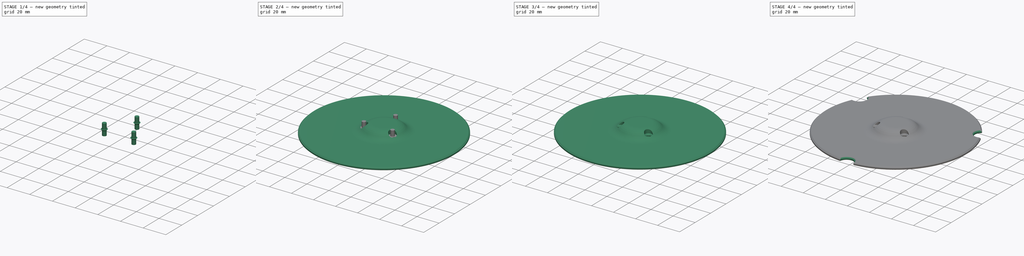
[diagram: build sequence overview — one tinted view per stage of 4, left to right]
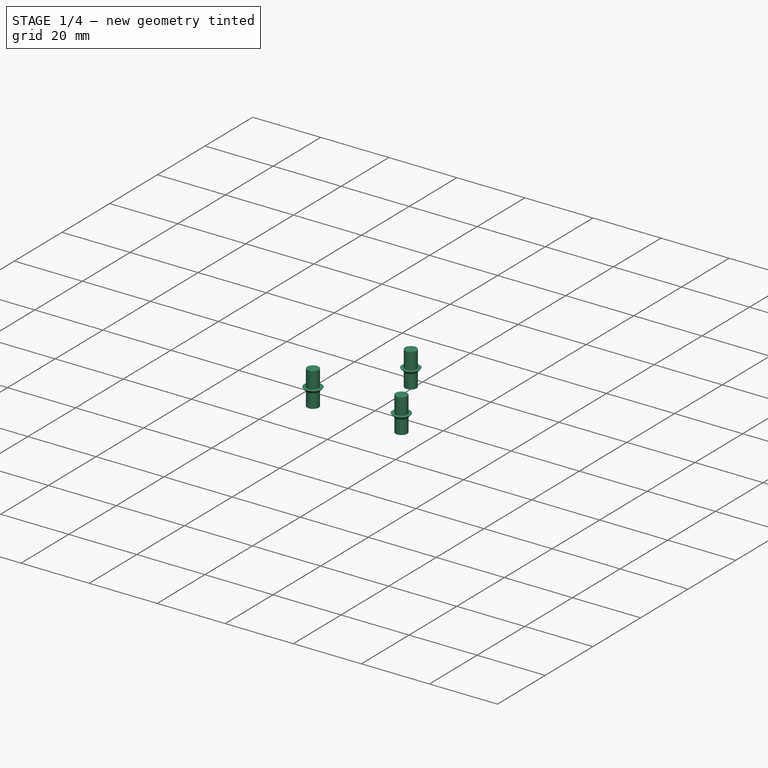
[diagram: stage 1 of 4 — iso view after this stage's code; geometry added in this stage tinted green]
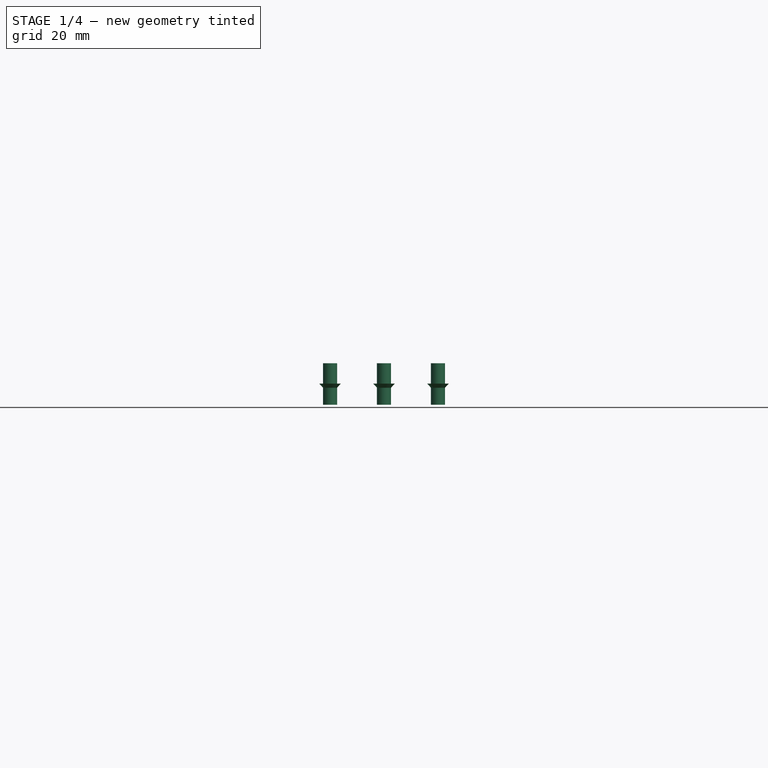
[diagram: stage 1 of 4 — front view after this stage's code; geometry added in this stage tinted green]
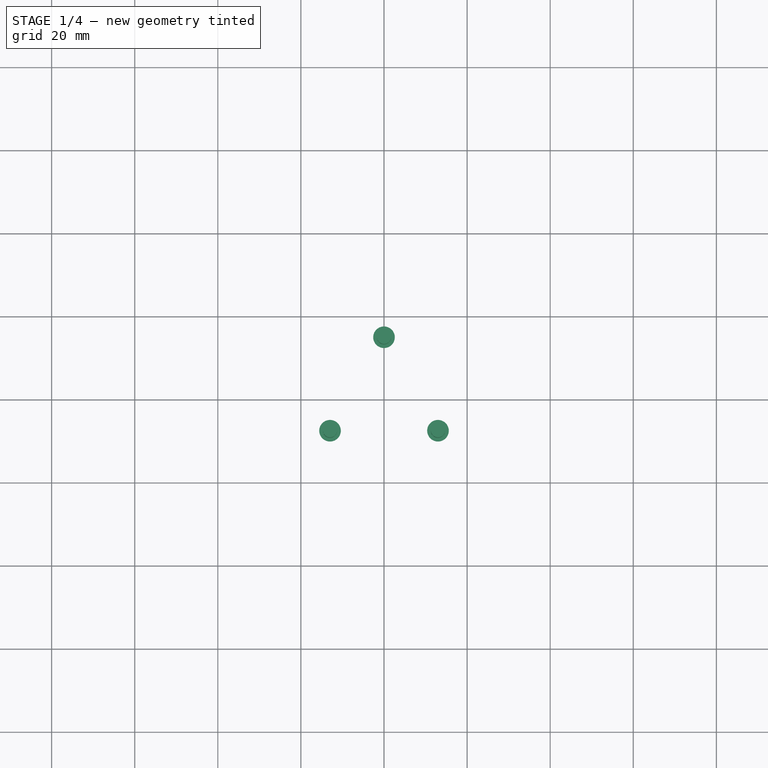
[diagram: stage 1 of 4 — top view after this stage's code; geometry added in this stage tinted green]
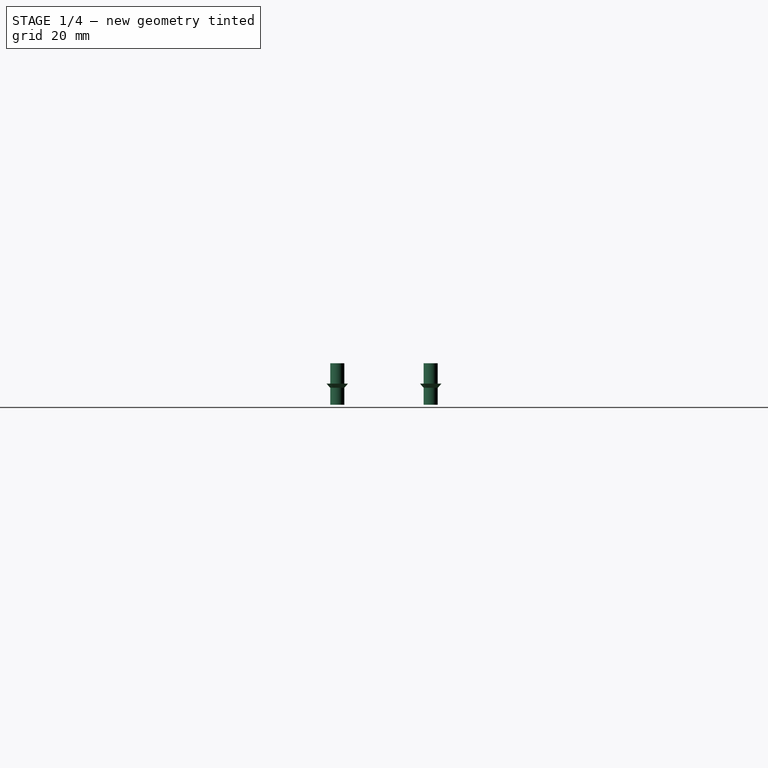
[diagram: stage 1 of 4 — right view after this stage's code; geometry added in this stage tinted green]
FCSTD DOCUMENT  (FreeCAD 0.17R13522 (Git))
Label: plato_loco_b
License: All rights reserved
LicenseURL: http://en.wikipedia.org/wiki/All_rights_reserved
objects: Part::FeaturePython×3, Part::Cut×3, Sketcher::SketchObject×2, Part::Cylinder×2, PartDesign::Revolution×1, PartDesign::Chamfer×1, PartDesign::Pocket×1, PartDesign::Body×1, Part::Cone×1, Part::Fillet×1, Part::Chamfer×1
note: 19 computed .brp shape members not serialized (recipe doc carries the construction recipe); baked Part::Feature solids carry a one-line shape summary decoded from their .brp

FEATURE [Part::Cylinder] Cylinder001  label="Cilindro001"
  Angle = 360
  AttacherType = Attacher::AttachEngine3D
  Height = 10
  Placement = pos=(0,15,0) rot=(0,0,1;0rad)
  Radius = 1.7
FEATURE [Part::FeaturePython] Array001  # Draft array (typed FeaturePython)
  Angle = 360
  ArrayType = 1
  Axis = (0,0,1)
  Base = -> Cylinder001
  Center = (0,0,0)
  Fuse = false
  IntervalAxis = (0,0,0)
  IntervalX = (1,0,0)
  IntervalY = (0,1,0)
  IntervalZ = (0,0,0)
  NumberPolar = 3
  NumberX = 2
  NumberY = 2
  NumberZ = 1
FEATURE [Part::Cone] Cone  label="Cono"
  Angle = 360
  AttacherType = Attacher::AttachEngine3D
  Height = 1.1
  Placement = pos=(0,15,4) rot=(0,0,1;0rad)
  Radius1 = 1.6
  Radius2 = 2.6
FEATURE [Part::FeaturePython] Array002  # Draft array (typed FeaturePython)
  Angle = 360
  ArrayType = 1
  Axis = (0,0,1)
  Base = -> Cone
  Center = (0,0,0)
  Fuse = false
  IntervalAxis = (0,0,0)
  IntervalX = (1,0,0)
  IntervalY = (0,1,0)
  IntervalZ = (0,0,0)
  NumberPolar = 3
  NumberX = 2
  NumberY = 2
  NumberZ = 1
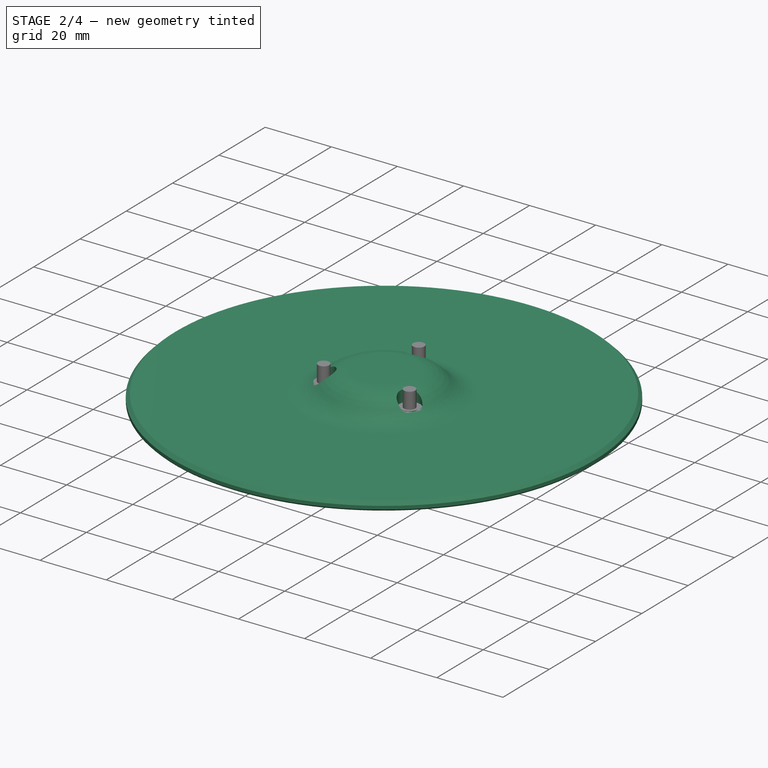
[diagram: stage 2 of 4 — iso view after this stage's code; geometry added in this stage tinted green]
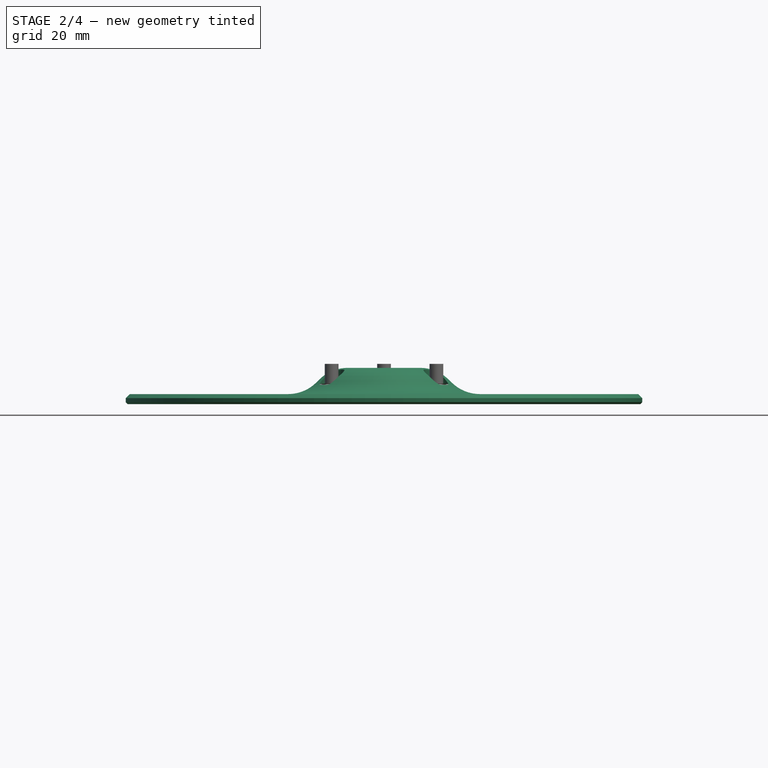
[diagram: stage 2 of 4 — front view after this stage's code; geometry added in this stage tinted green]
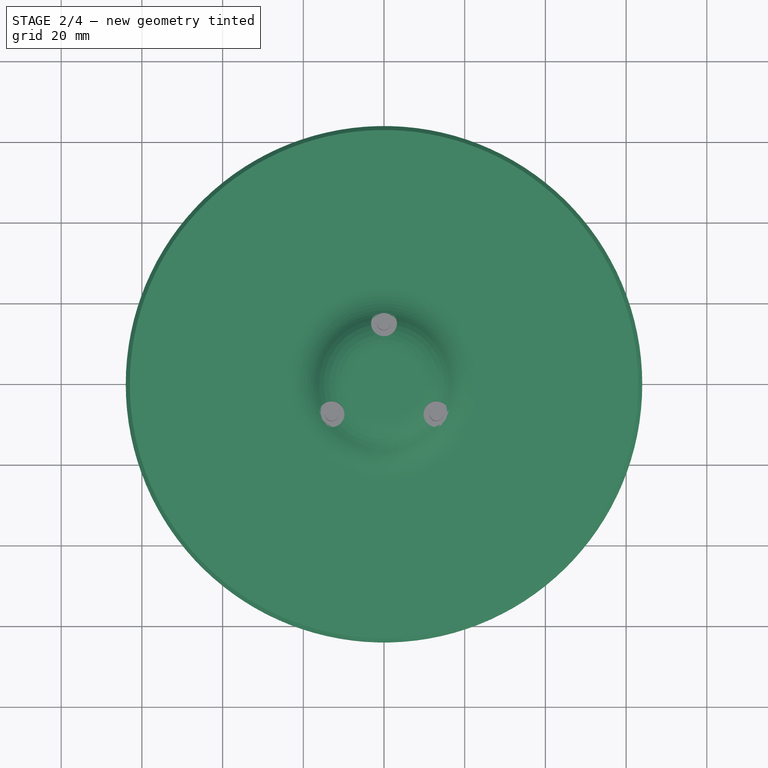
[diagram: stage 2 of 4 — top view after this stage's code; geometry added in this stage tinted green]
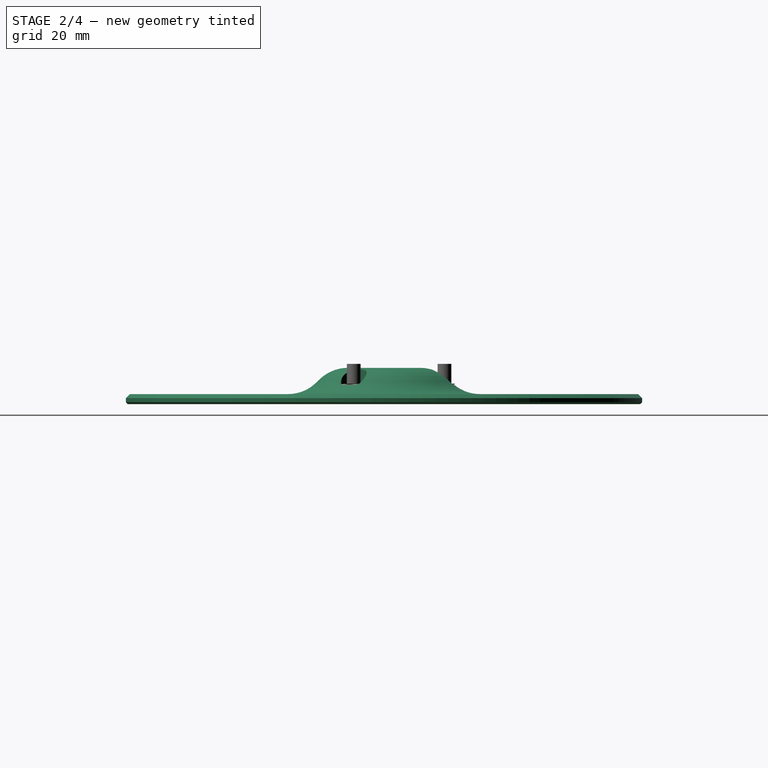
[diagram: stage 2 of 4 — right view after this stage's code; geometry added in this stage tinted green]
FEATURE [Sketcher::SketchObject] Sketch
  MapMode = 5
  Placement = pos=(0,0,0) rot=(1,0,0;1.5708rad)
  Support = -> [XZ_Plane]
  sketch-geometry (13):
    g0: LineSegment StartX=-63.5 StartY=0 StartZ=0 EndX=-9 EndY=0 EndZ=0
    g1: LineSegment StartX=-9 StartY=0 StartZ=0 EndX=-9 EndY=6.5 EndZ=0
    g2: LineSegment StartX=-9 StartY=6.5 StartZ=0 EndX=-8 EndY=7.5 EndZ=0
    g3: LineSegment StartX=-8 StartY=7.5 StartZ=0 EndX=0 EndY=7.5 EndZ=0
    g4: LineSegment StartX=0 StartY=7.5 StartZ=0 EndX=0 EndY=9 EndZ=0
    g5: LineSegment StartX=0 StartY=9 StartZ=0 EndX=-9 EndY=9 EndZ=0
    g6: LineSegment StartX=-16.0711 StartY=6.07107 StartZ=0 EndX=-16.7132 EndY=5.42893 EndZ=0
    g7: LineSegment StartX=-23.7843 StartY=2.5 StartZ=0 EndX=-63 EndY=2.5 EndZ=0
    g8: LineSegment StartX=-63 StartY=2.5 StartZ=0 EndX=-64 EndY=1.5 EndZ=0
    g9: LineSegment StartX=-64 StartY=1.5 StartZ=0 EndX=-64 EndY=0.5 EndZ=0
    g10: LineSegment StartX=-64 StartY=0.5 StartZ=0 EndX=-63.5 EndY=0 EndZ=0
    g11: ArcOfCircle CenterX=-9 CenterY=-1 CenterZ=0 NormalX=0 NormalY=0 NormalZ=1 AngleXU=0 Radius=10 StartAngle=1.5708 EndAngle=2.35619
    g12: ArcOfCircle CenterX=-23.7843 CenterY=12.5 CenterZ=0 NormalX=0 NormalY=0 NormalZ=1 AngleXU=0 Radius=10 StartAngle=4.71239 EndAngle=5.49779
  constraints (37):
    c: PointOnObject(g0,g-1)
    c: Horizontal(g0)
    c: Coincident(g0,g1)
    c: Vertical(g1)
    c: Coincident(g1,g2)
    c: Coincident(g2,g3)
    c: Horizontal(g3)
    c: Coincident(g3,g4)
    c: PointOnObject(g4,g-2)
    c: Coincident(g4,g5)
    c: Horizontal(g5)
    c: Horizontal(g7)
    c: Coincident(g7,g8)
    c: Coincident(g8,g9)
    c: Vertical(g9)
    c: Coincident(g9,g10)
    c: Coincident(g10,g0)
    c: Angle(g0,g10) = 2.35619
    c: DistanceY(g0,g9) = 0.5
    c: DistanceY(g9,g9) = 1
    c: DistanceY(g8,g7) = 1
    c: Angle(g10,g8) = 1.5708
    c: DistanceX(g0,g-1) = 9
    c: DistanceY(g1,g1) = 6.5
    c: Vertical(g4)
    c: Angle(g1,g2) = 2.35619
    c: DistanceY(g1,g2) = 1
    c: DistanceY(g4,g4) = 1.5
    c: DistanceX(g9,g-1) = 64
    c: Tangent(g6,g11) = -1.5708
    c: Tangent(g5,g11) = -1.5708
    c: Tangent(g6,g12) = 1.5708
    c: Tangent(g7,g12) = 1.5708
    c: Radius(g12) = 10
    c: Equal(g12,g11)
    c: Angle(g6,g7) = 2.35619
    c: DistanceX(g5,g5) = 9
FEATURE [PartDesign::Revolution] Revolution
  Angle = 360
  Axis = (0,0,1)
  Base = (0,0,0)
  Placement = pos=(0,0,0) rot=(1,0,0;1.5708rad)
  Profile = -> Sketch
  ReferenceAxis = -> Sketch [V_Axis]
  Refine = true
FEATURE [PartDesign::Chamfer] Chamfer
  Base = -> Revolution [Edge9]
  BaseFeature = -> Revolution
  Placement = pos=(0,0,0) rot=(1,0,0;1.5708rad)
  Size = 0.5
FEATURE [Sketcher::SketchObject] Sketch001
  MapMode = 5
  Placement = pos=(0,-1e-12,9) rot=(0,0,1;3.14159rad)
  Support = -> [Chamfer]
  sketch-geometry (6):
    g0: LineSegment [constr] StartX=0 StartY=-15 StartZ=0 EndX=-12.9904 EndY=7.5 EndZ=0
    g1: LineSegment [constr] StartX=-12.9904 StartY=7.5 StartZ=0 EndX=12.9904 EndY=7.5 EndZ=0
    g2: LineSegment [constr] StartX=12.9904 StartY=7.5 StartZ=0 EndX=0 EndY=-15 EndZ=0
    g3: Circle CenterX=-12.9904 CenterY=7.5 CenterZ=0 NormalX=0 NormalY=0 NormalZ=1 AngleXU=0 Radius=3.2
    g4: Circle CenterX=12.9904 CenterY=7.5 CenterZ=0 NormalX=0 NormalY=0 NormalZ=1 AngleXU=0 Radius=3.2
    g5: Circle CenterX=0 CenterY=-15 CenterZ=0 NormalX=0 NormalY=0 NormalZ=1 AngleXU=0 Radius=3.2
  constraints (15):
    c: PointOnObject(g0,g-2)
    c: Coincident(g0,g1)
    c: Horizontal(g1)
    c: Coincident(g1,g2)
    c: Coincident(g2,g0)
    c: Equal(g2,g0)
    c: Equal(g0,g1)
    c: DistanceY(g0,g-1) = 15
    c: Distance(g-1,g0) = 15
    c: Coincident(g3,g0)
    c: Coincident(g4,g1)
    c: Coincident(g5,g0)
    c: Radius(g5) = 3.2
    c: Equal(g5,g4)
    c: Equal(g5,g3)
FEATURE [PartDesign::Pocket] Pocket
  BaseFeature = -> Chamfer
  Length = 4
  Length2 = 100
  Placement = pos=(0,0,0) rot=(1,0,0;1.5708rad)
  Profile = -> Sketch001
  Refine = true
  Type = 0
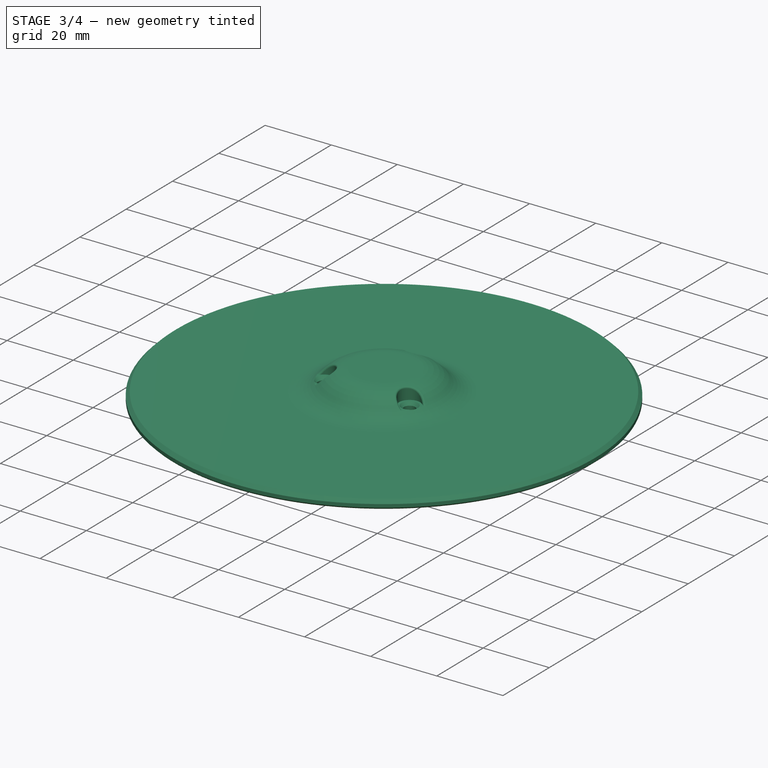
[diagram: stage 3 of 4 — iso view after this stage's code; geometry added in this stage tinted green]
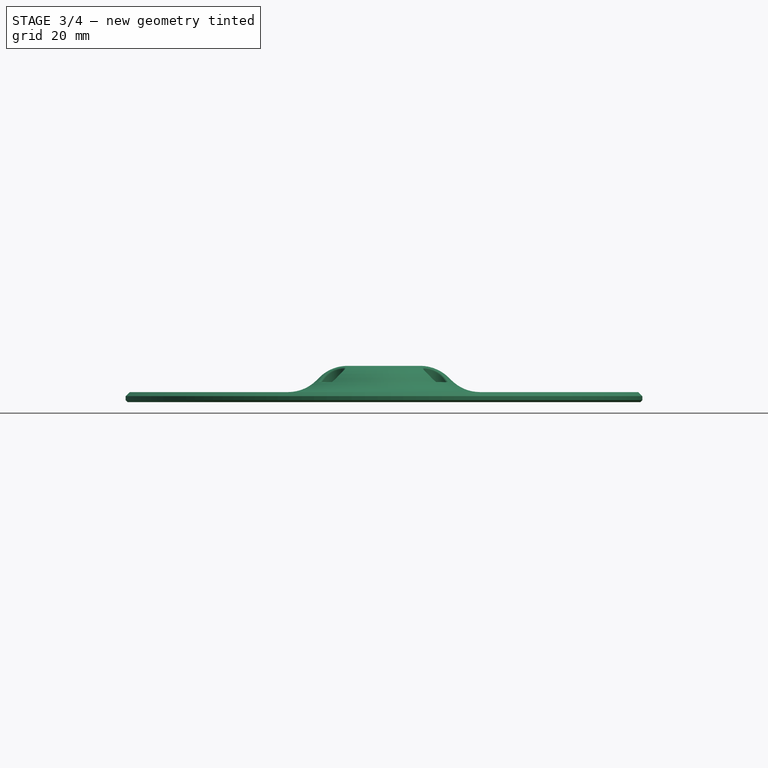
[diagram: stage 3 of 4 — front view after this stage's code; geometry added in this stage tinted green]
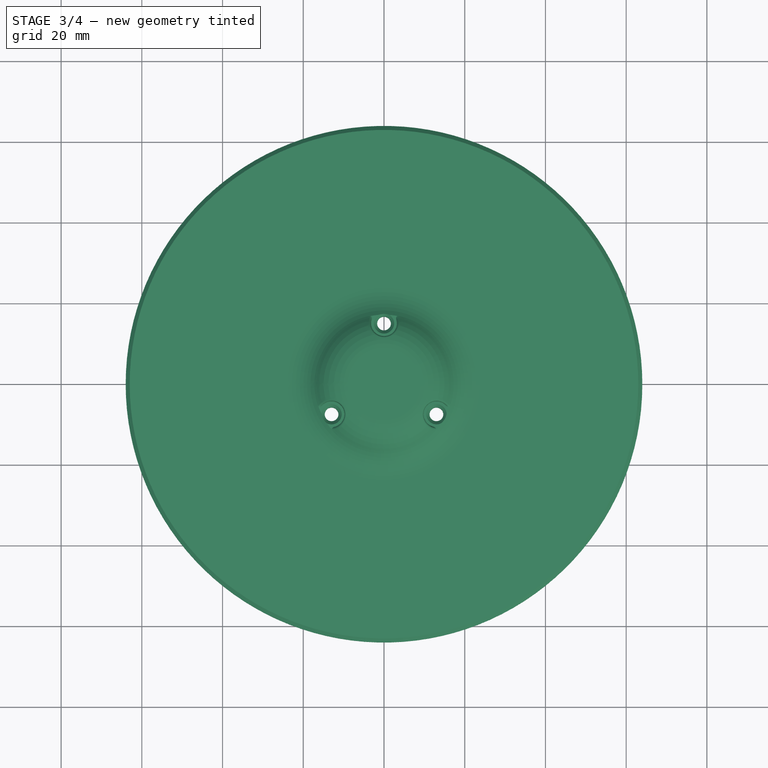
[diagram: stage 3 of 4 — top view after this stage's code; geometry added in this stage tinted green]
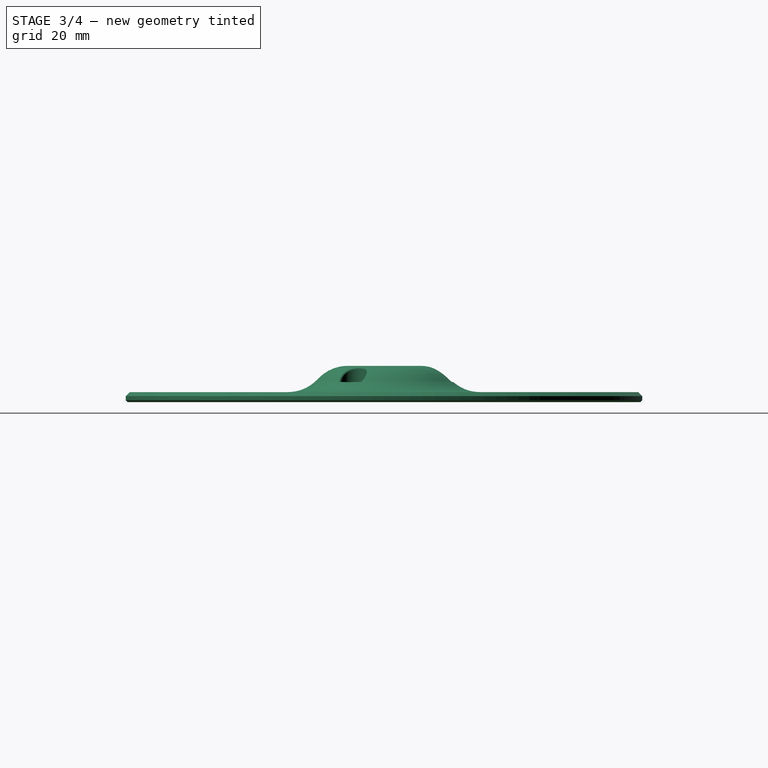
[diagram: stage 3 of 4 — right view after this stage's code; geometry added in this stage tinted green]
FEATURE [Part::Cut] Cut
  Base = -> Pocket
  Refine = true
  Tool = -> Array001
FEATURE [Part::Cut] Cut001
  Base = -> Cut
  Refine = true
  Tool = -> Array002
FEATURE [Part::Fillet] Fillet
  Base = -> Cut001
  Edges = 4 edges r=0.5: [Edge61,Edge62,Edge67,Edge72]
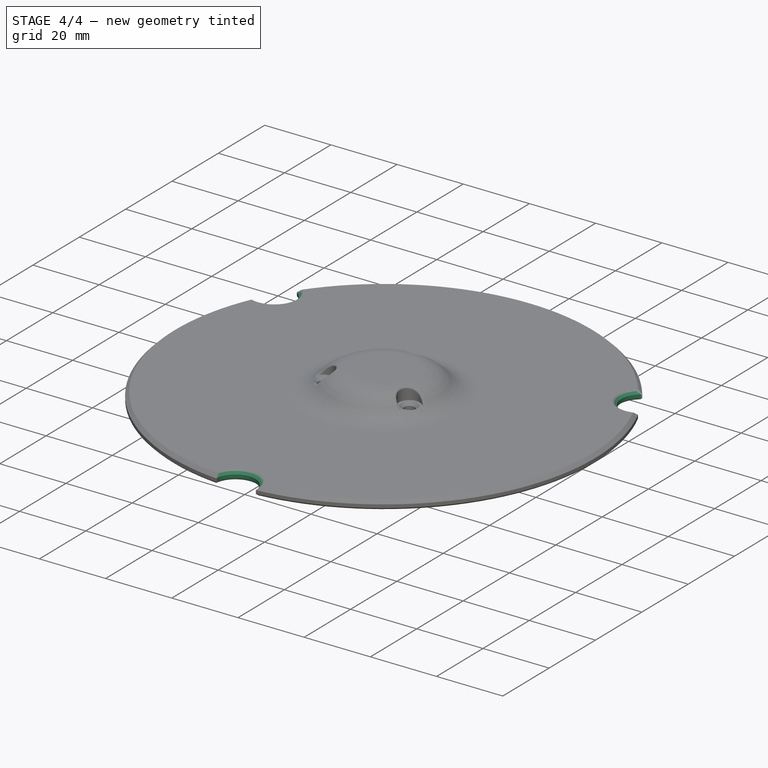
[diagram: stage 4 of 4 — iso view after this stage's code; geometry added in this stage tinted green]
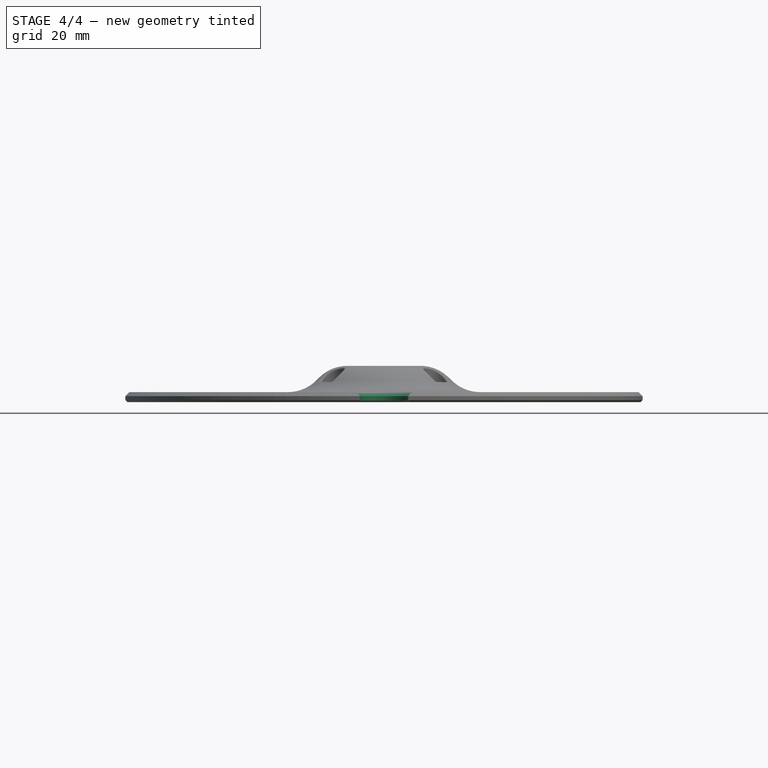
[diagram: stage 4 of 4 — front view after this stage's code; geometry added in this stage tinted green]
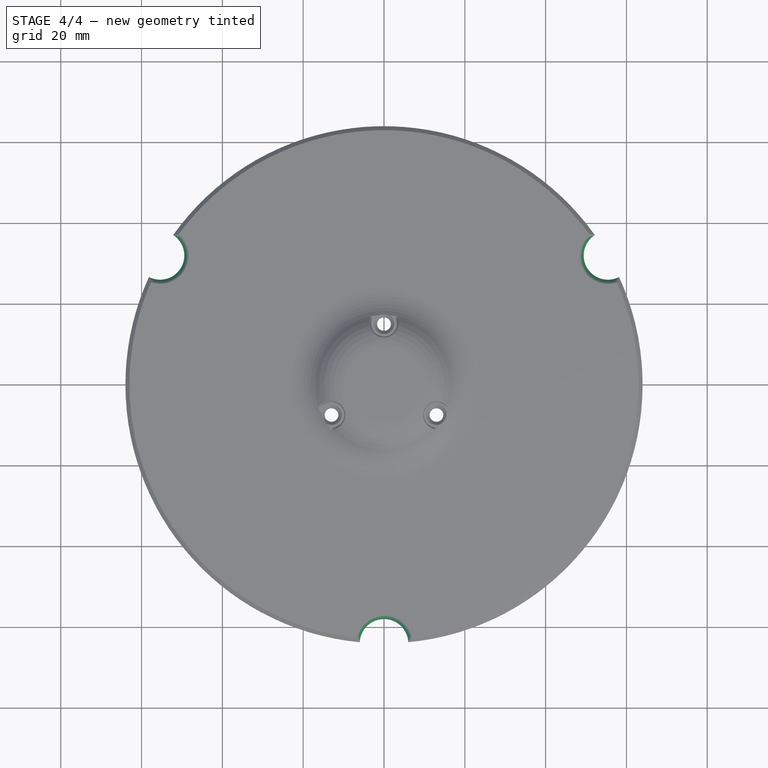
[diagram: stage 4 of 4 — top view after this stage's code; geometry added in this stage tinted green]
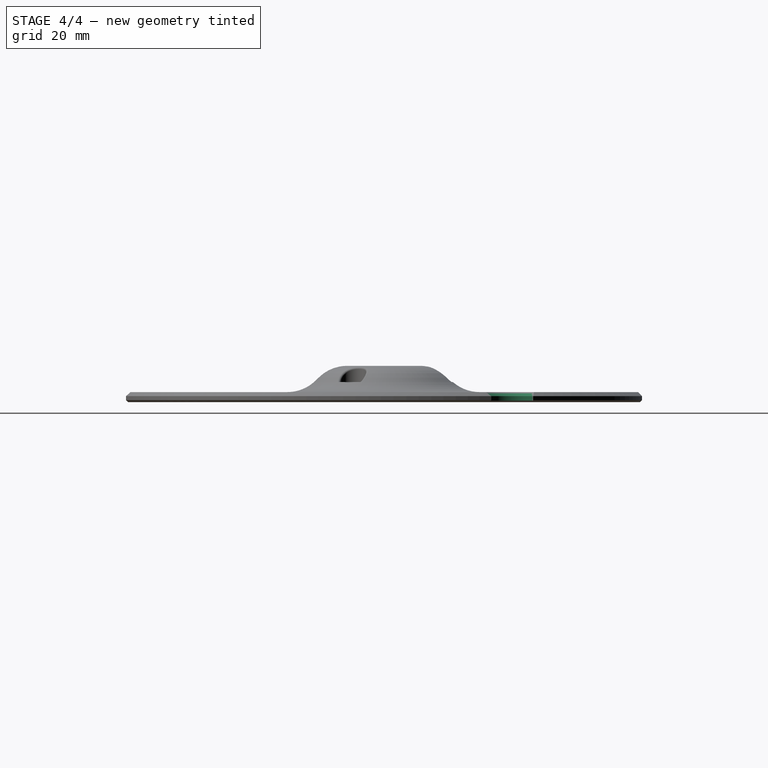
[diagram: stage 4 of 4 — right view after this stage's code; geometry added in this stage tinted green]
FEATURE [PartDesign::Body] Body
  Group = -> [Sketch,Revolution,Chamfer,Sketch001,Pocket]
  Origin = -> Origin
  Tip = -> Pocket
FEATURE [Part::Cylinder] Cylinder  label="Cilindro"
  Angle = 360
  AttacherType = Attacher::AttachEngine3D
  Height = 10
  Placement = pos=(0,-64,0) rot=(0,0,1;0rad)
  Radius = 6
FEATURE [Part::FeaturePython] Array  # Draft array (typed FeaturePython)
  Angle = 360
  ArrayType = 1
  Axis = (0,0,1)
  Base = -> Cylinder
  Center = (0,0,0)
  Fuse = false
  IntervalAxis = (0,0,0)
  IntervalX = (1,0,0)
  IntervalY = (0,1,0)
  IntervalZ = (0,0,0)
  NumberPolar = 3
  NumberX = 2
  NumberY = 2
  NumberZ = 1
FEATURE [Part::Cut] Cut002
  Base = -> Fillet
  Refine = true
  Tool = -> Array
FEATURE [Part::Chamfer] Chamfer001
  Base = -> Cut002
  Edges = 6 edges: [Edge59 r=1,Edge61 r=1,Edge63 r=1,Edge105 r=0.4,Edge113 r=0.4,Edge121 r=0.4]
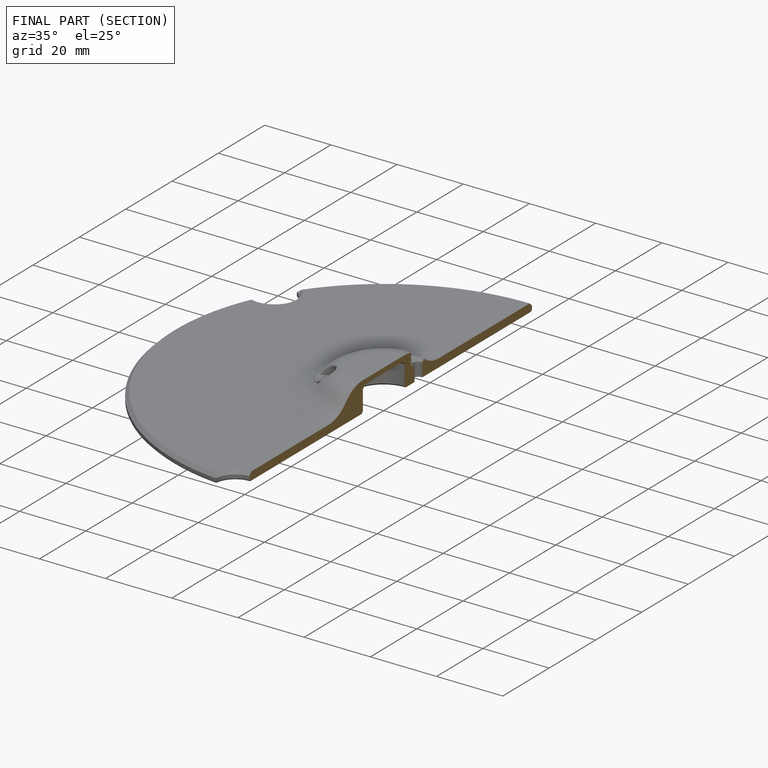
[diagram: finished part — half-section view (interior)]
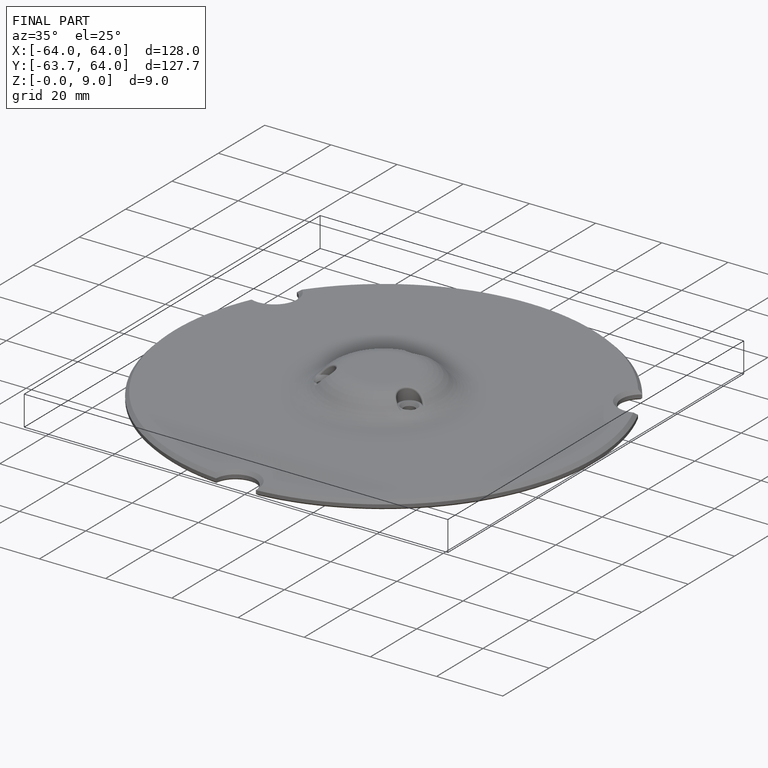
[diagram: finished part — iso view with bounding-box wireframe]
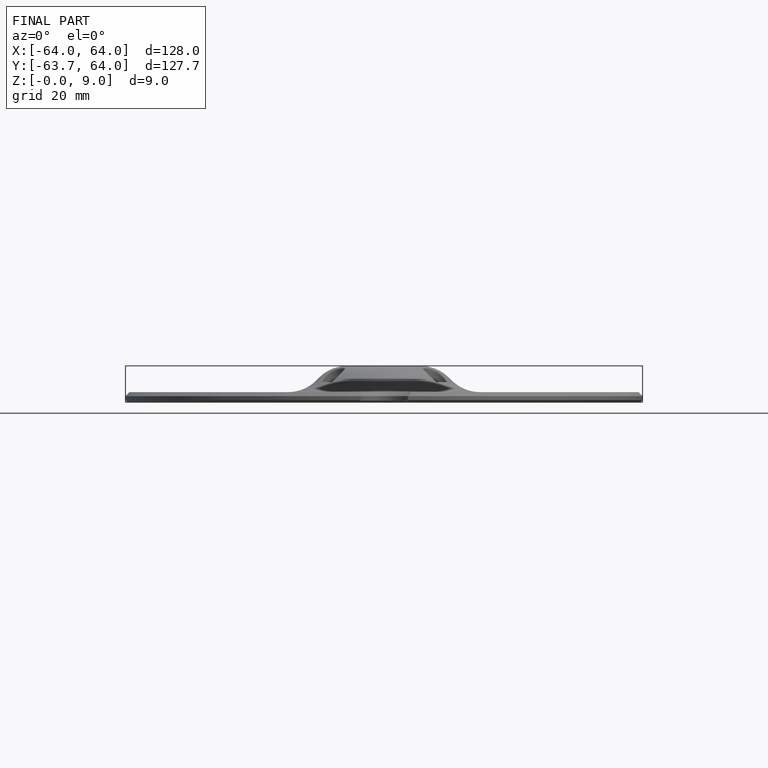
[diagram: finished part — front view with bounding-box wireframe]
